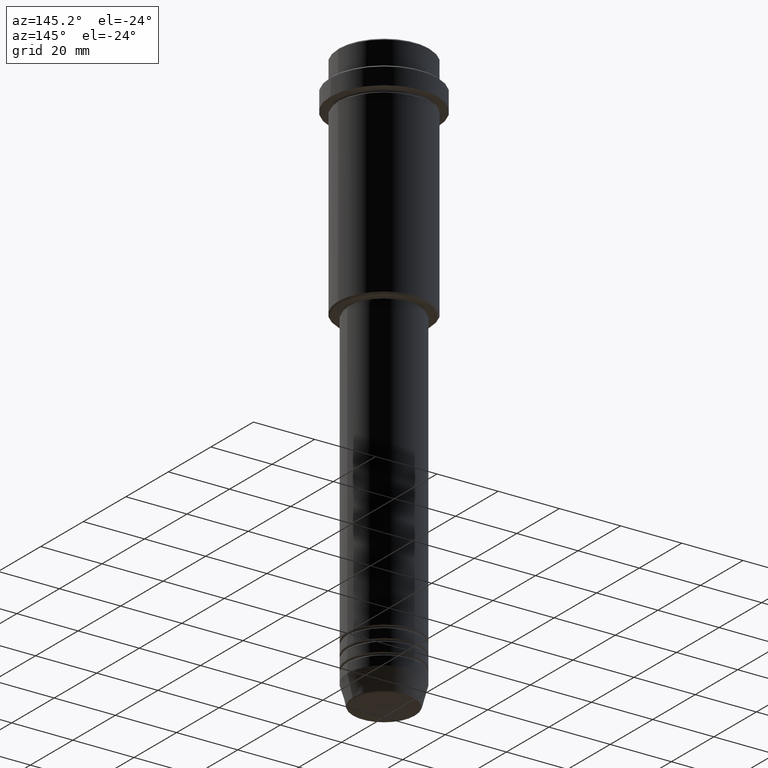
[diagram: clean part render]
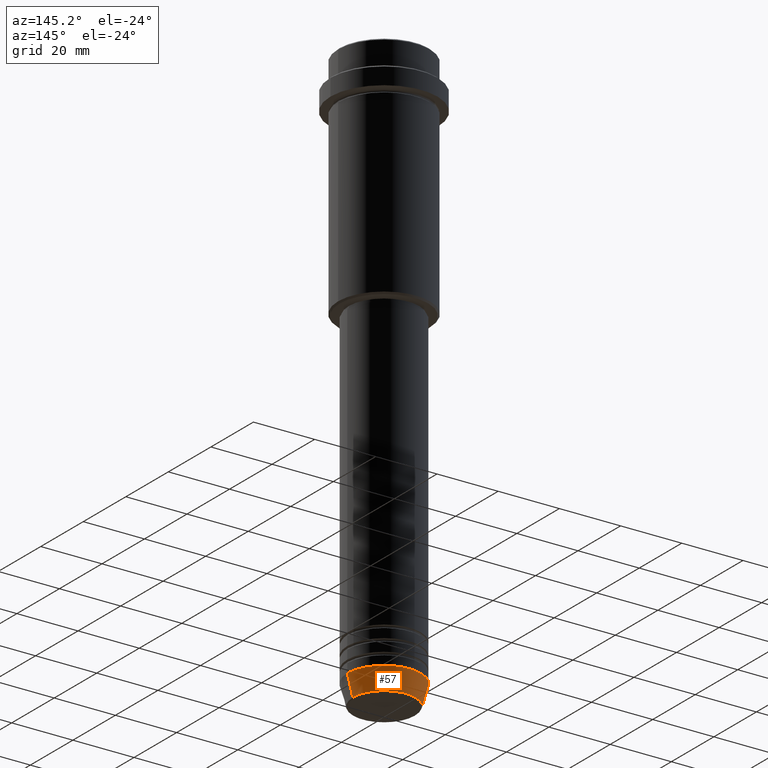
[diagram: same view with one face highlighted and labeled with its STEP entity id]
A machine part, auxiliary view. The second image highlights one B-rep face of the part: STEP entity #57.
In plain terms, the highlighted conical surface has half-angle 15 deg.
Its self-contained STEP definition (entity closure, byte-faithful):
#57 = ADVANCED_FACE ( 'NONE', ( #387 ), #736, .T. ) ;
#130 = DIRECTION ( 'NONE',  ( -0.2588190451025213501, 3.169619151431772337E-17, 0.9659258262890680902 ) ) ;
#153 = CARTESIAN_POINT ( 'NONE',  ( 0.000000000000000000, 0.000000000000000000, -183.0000000000000000 ) ) ;
#163 = EDGE_CURVE ( 'NONE', #231, #794, #1372, .T. ) ;
#224 = ORIENTED_EDGE ( 'NONE', *, *, #1018, .F. ) ;
#231 = VERTEX_POINT ( 'NONE', #1209 ) ;
#250 = DIRECTION ( 'NONE',  ( -0.000000000000000000, -0.000000000000000000, 1.000000000000000000 ) ) ;
#315 = CARTESIAN_POINT ( 'NONE',  ( 0.000000000000000000, 0.000000000000000000, -183.0000000000000000 ) ) ;
#349 = AXIS2_PLACEMENT_3D ( 'NONE', #1388, #1038, #1256 ) ;
#387 = FACE_OUTER_BOUND ( 'NONE', #1381, .T. ) ;
#427 = DIRECTION ( 'NONE',  ( 0.2588190451025213501, 0.000000000000000000, 0.9659258262890680902 ) ) ;
#448 = EDGE_CURVE ( 'NONE', #794, #882, #684, .T. ) ;
#551 = CARTESIAN_POINT ( 'NONE',  ( 12.00000000000000000, 0.000000000000000000, -183.0000000000000000 ) ) ;
#602 = EDGE_CURVE ( 'NONE', #231, #815, #1401, .T. ) ;
#644 = DIRECTION ( 'NONE',  ( 1.000000000000000000, 0.000000000000000000, 0.000000000000000000 ) ) ;
#684 = LINE ( 'NONE', #913, #1097 ) ;
#736 = CONICAL_SURFACE ( 'NONE', #826, 12.00000000000000000, 0.2617993877991500740 ) ;
#794 = VERTEX_POINT ( 'NONE', #1085 ) ;
#815 = VERTEX_POINT ( 'NONE', #551 ) ;
#826 = AXIS2_PLACEMENT_3D ( 'NONE', #153, #250, #1137 ) ;
#831 = VECTOR ( 'NONE', #427, 1000.000000000000000 ) ;
#837 = DIRECTION ( 'NONE',  ( -0.000000000000000000, -0.000000000000000000, 1.000000000000000000 ) ) ;
#878 = AXIS2_PLACEMENT_3D ( 'NONE', #315, #837, #644 ) ;
#882 = VERTEX_POINT ( 'NONE', #1147 ) ;
#913 = CARTESIAN_POINT ( 'NONE',  ( -12.00000000000000000, 1.469576158976823947E-15, -183.0000000000000000 ) ) ;
#1018 = EDGE_CURVE ( 'NONE', #815, #882, #1288, .T. ) ;
#1038 = DIRECTION ( 'NONE',  ( -0.000000000000000000, -0.000000000000000000, 1.000000000000000000 ) ) ;
#1062 = ORIENTED_EDGE ( 'NONE', *, *, #163, .T. ) ;
#1074 = ORIENTED_EDGE ( 'NONE', *, *, #602, .F. ) ;
#1085 = CARTESIAN_POINT ( 'NONE',  ( -10.22365507213719127, 1.360806402472382744E-15, -189.6294095225512422 ) ) ;
#1097 = VECTOR ( 'NONE', #130, 1000.000000000000000 ) ;
#1137 = DIRECTION ( 'NONE',  ( 1.000000000000000000, 0.000000000000000000, 0.000000000000000000 ) ) ;
#1147 = CARTESIAN_POINT ( 'NONE',  ( -12.00000000000000000, 1.469576158976823947E-15, -183.0000000000000000 ) ) ;
#1188 = ORIENTED_EDGE ( 'NONE', *, *, #448, .T. ) ;
#1209 = CARTESIAN_POINT ( 'NONE',  ( 10.22365507213719127, 0.000000000000000000, -189.6294095225512422 ) ) ;
#1256 = DIRECTION ( 'NONE',  ( 1.000000000000000000, 0.000000000000000000, 0.000000000000000000 ) ) ;
#1288 = CIRCLE ( 'NONE', #878, 12.00000000000000000 ) ;
#1372 = CIRCLE ( 'NONE', #349, 10.22365507213719127 ) ;
#1381 = EDGE_LOOP ( 'NONE', ( #1062, #1188, #224, #1074 ) ) ;
#1388 = CARTESIAN_POINT ( 'NONE',  ( 0.000000000000000000, 0.000000000000000000, -189.6294095225512422 ) ) ;
#1401 = LINE ( 'NONE', #1408, #831 ) ;
#1408 = CARTESIAN_POINT ( 'NONE',  ( 12.00000000000000000, 0.000000000000000000, -183.0000000000000000 ) ) ;